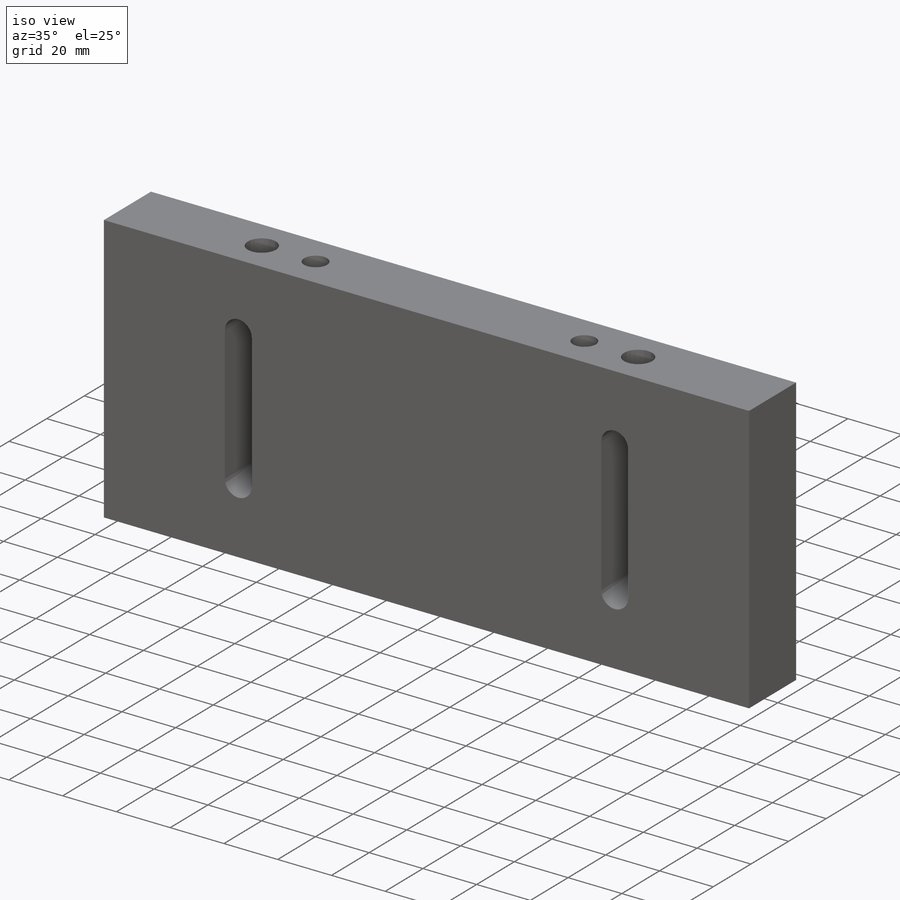
[diagram: iso view]
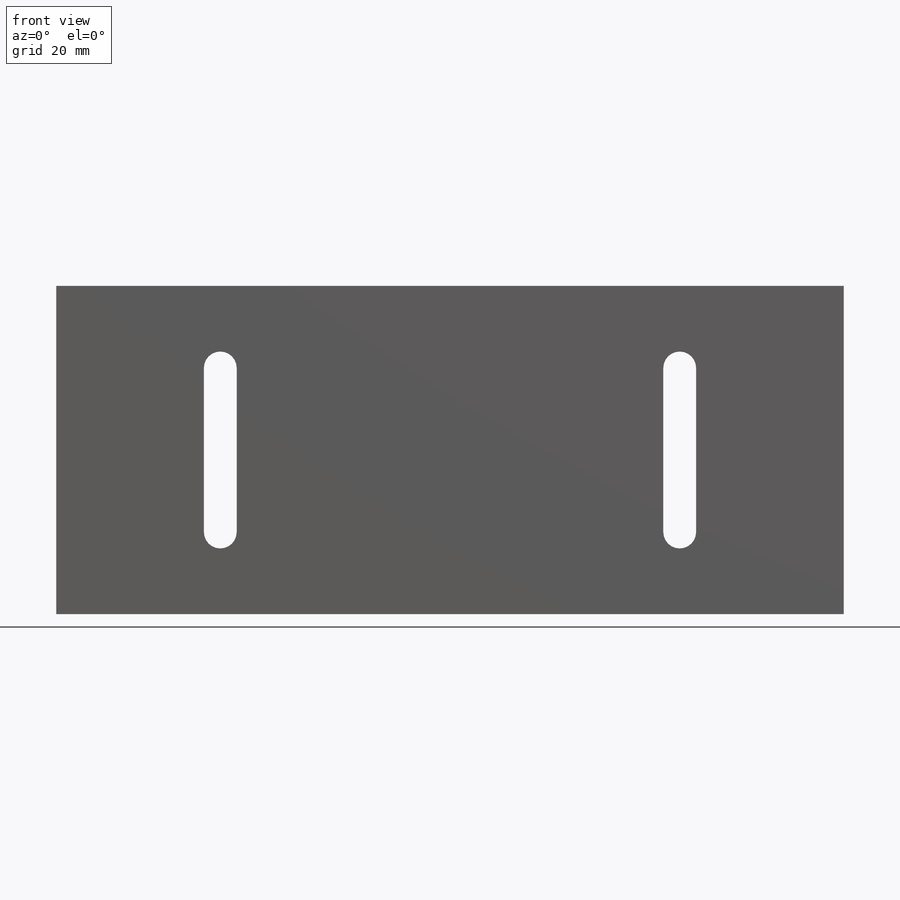
[diagram: front view]
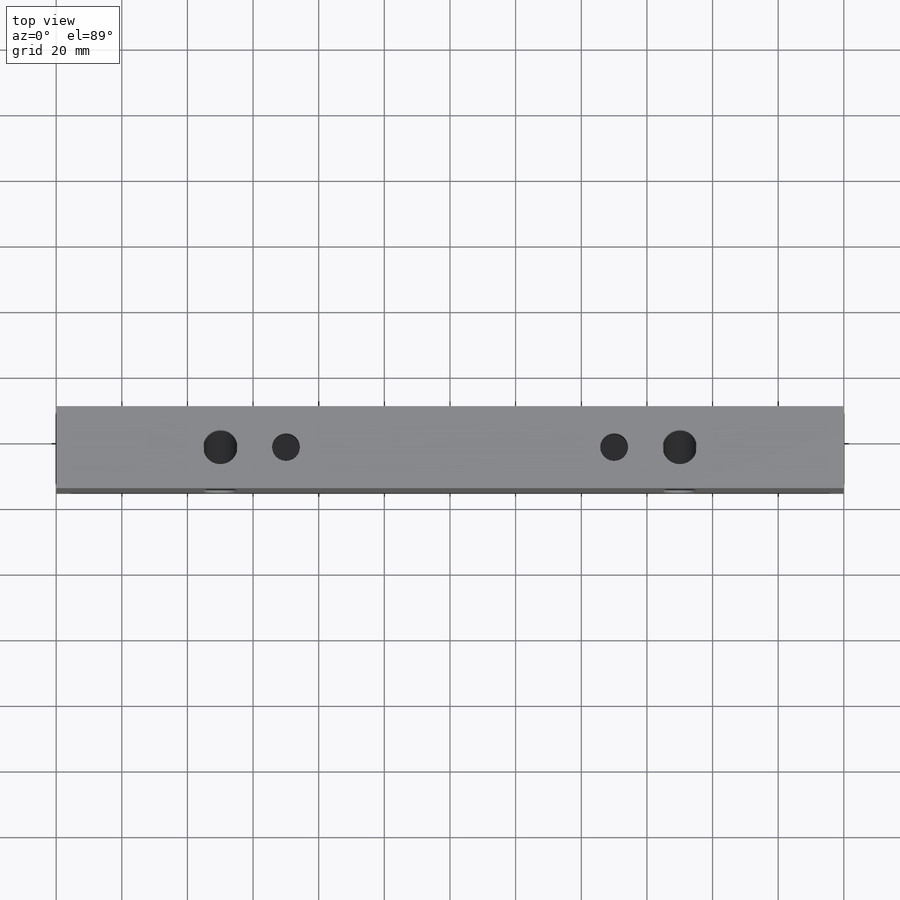
[diagram: top view]
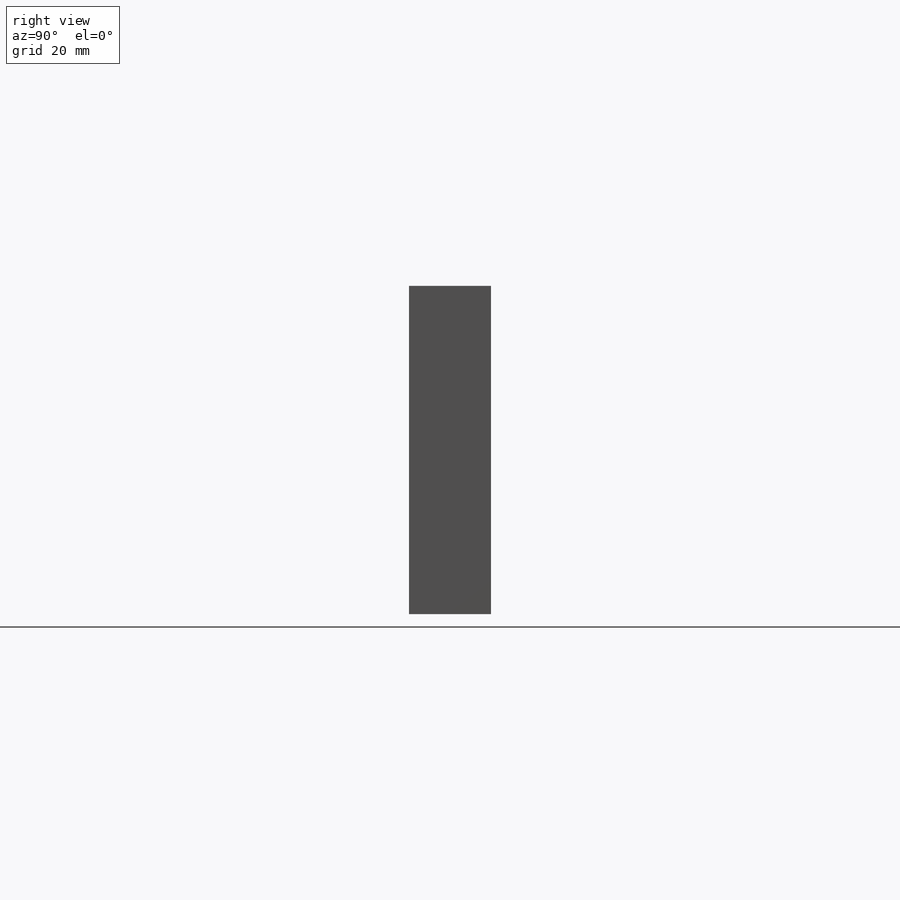
[diagram: right view]
SOLIDWORKS PART (.sldprt)
format: sldprt  version: not decoded by parser v0  size: 195,584 bytes
history: native  units: mm
features: plane x3, sketch x3, cut_extrude x2, material x1, extrude x1 (+10 scaffold rows collapsed)
feature tree (20):
  scaffold x10  (default folders/planes/origin — collapsed)
  material  "Material <sin especificar>"
  plane  "Alzado"
  plane  "Planta"
  plane  "Vista lateral"
  sketch  "Croquis1"  dims[D1=25.0mm D2=240.0mm D3=120.0mm]
  extrude  "Saliente-Extruir1"  Depth=100mm
  sketch  "Croquis3"  dims[c1.D1=10.0mm c1.D2=10.0mm c1.D4=10.0mm c1.D6=10.0mm c2.D6=10.0mm c2.D7=10.5mm c2.D8=10.5mm c2.D2=30.0mm c2.D3=12.5mm c2.D5=30.0mm c3.D6=12.5mm]
  cut_extrude  "Cortar-Extruir1"  Depth=25mm
  sketch  "Croquis4"  dims[D9=10.0mm D10=10.0mm D1=50.0mm D2=50.0mm D3=10.0mm D4=10.0mm D5=25.0mm D6=25.0mm D7=50.0mm D8=50.0mm]
  cut_extrude  "Cortar-Extruir2"  Depth=25mm
decode coverage: 6 of 6 modeling features carry decoded parameters
note: suppression state not decoded; provenance and decode notes live in map.json
